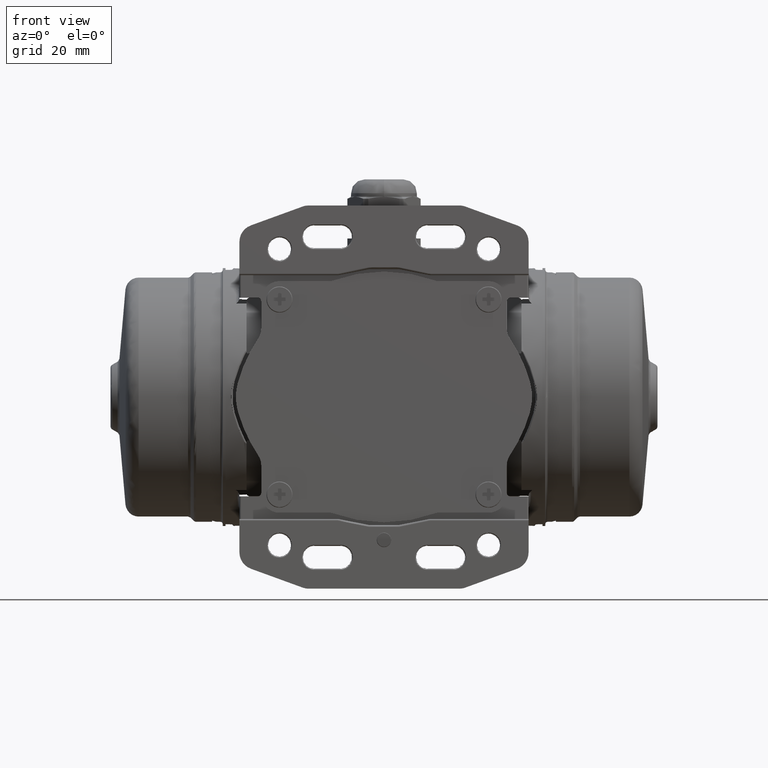
[diagram: clean part render]
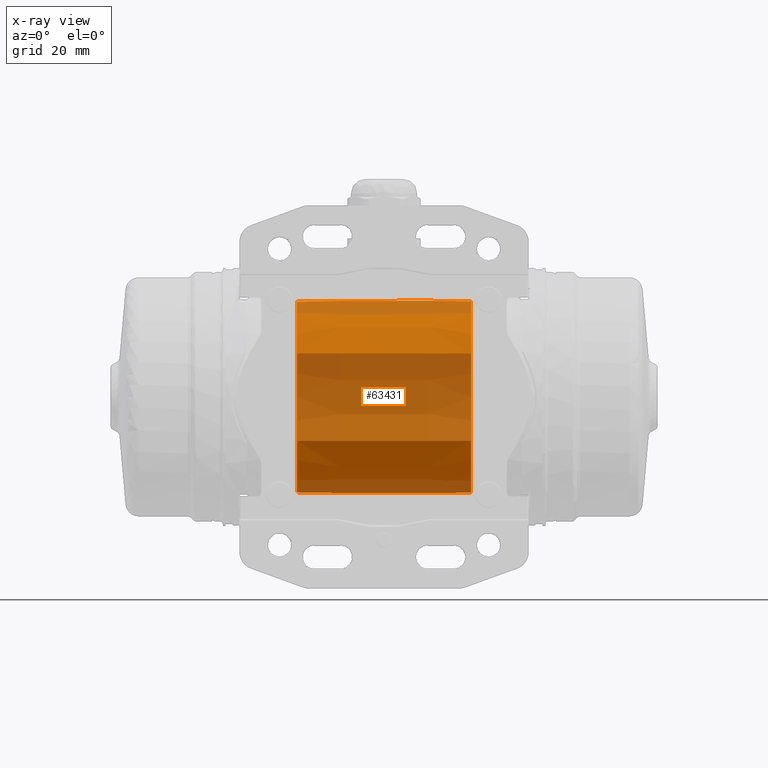
[diagram: x-ray — body ghosted, one internal face saturated and labeled with its STEP entity id]
A machine part, front view, then the same camera in x-ray: the body is ghosted and one INTERNAL B-rep face — a face not visible from any outside direction — is saturated and labeled: STEP entity #63431.
In plain terms, the highlighted conical surface has half-angle 0.115 deg.
Its self-contained STEP definition (entity closure, byte-faithful):
#6464 = EDGE_CURVE ( 'NONE', #64338, #18809, #100785, .T. ) ;
#8847 = DIRECTION ( 'NONE',  ( 1.631204715162934600E-015, -1.000000000000000000, 0.0000000000000000000 ) ) ;
#9929 = CARTESIAN_POINT ( 'NONE',  ( -24.99500802099994700, 0.3360905650000000100, -0.002992830000000000100 ) ) ;
#14260 = EDGE_LOOP ( 'NONE', ( #52036, #44484, #28456, #61707 ) ) ;
#16064 = CARTESIAN_POINT ( 'NONE',  ( 25.00489204300015100, -24.32709846705410000, 12.49699144262448100 ) ) ;
#17119 = CARTESIAN_POINT ( 'NONE',  ( 25.00489204300015100, -24.32709846705410000, 12.49699144262448100 ) ) ;
#18809 = VERTEX_POINT ( 'NONE', #38373 ) ;
#20600 = CARTESIAN_POINT ( 'NONE',  ( 8.338258738333333800, -24.28969966121086100, -12.50303369828957000 ) ) ;
#26850 = DIRECTION ( 'NONE',  ( 0.0000000000000000000, -1.000000000000000000, 0.0000000000000000000 ) ) ;
#28456 = ORIENTED_EDGE ( 'NONE', *, *, #6464, .F. ) ;
#29196 = VERTEX_POINT ( 'NONE', #123199 ) ;
#29879 = CARTESIAN_POINT ( 'NONE',  ( 25.00489204300015100, -24.32709845679900000, -12.50297712285848000 ) ) ;
#36982 = DIRECTION ( 'NONE',  ( 1.000000000000000000, 0.0000000000000000000, 0.0000000000000000000 ) ) ;
#38373 = CARTESIAN_POINT ( 'NONE',  ( 25.00489204300015100, -24.32709845679900000, -12.50297712285848000 ) ) ;
#39171 = CARTESIAN_POINT ( 'NONE',  ( -8.328374641333333300, -24.25230671375121400, -12.50304415539662800 ) ) ;
#43152 = AXIS2_PLACEMENT_3D ( 'NONE', #9929, #66584, #97037 ) ;
#43848 = EDGE_CURVE ( 'NONE', #114626, #29196, #90103, .T. ) ;
#44484 = ORIENTED_EDGE ( 'NONE', *, *, #76675, .F. ) ;
#45835 = CARTESIAN_POINT ( 'NONE',  ( 8.338258738333333800, -24.28969967563278900, 12.49704800990258700 ) ) ;
#47118 = CARTESIAN_POINT ( 'NONE',  ( -24.99500802100000000, 0.3360905650000005100, -0.002992830000000000100 ) ) ;
#52036 = ORIENTED_EDGE ( 'NONE', *, *, #43848, .F. ) ;
#55984 = CARTESIAN_POINT ( 'NONE',  ( -8.328374641333333300, -24.25230671983970900, 12.49705848344502500 ) ) ;
#57415 = EDGE_CURVE ( 'NONE', #29196, #64338, #121172, .T. ) ;
#61707 = ORIENTED_EDGE ( 'NONE', *, *, #57415, .F. ) ;
#63431 = ADVANCED_FACE ( 'NONE', ( #121836 ), #88542, .T. ) ;
#64338 = VERTEX_POINT ( 'NONE', #105415 ) ;
#66584 = DIRECTION ( 'NONE',  ( -1.000000000000000000, -0.0000000000000000000, -0.0000000000000000000 ) ) ;
#67600 = DIRECTION ( 'NONE',  ( 1.000000000000000000, 0.0000000000000000000, 0.0000000000000000000 ) ) ;
#72680 = AXIS2_PLACEMENT_3D ( 'NONE', #47118, #36982, #26850 ) ;
#76675 = EDGE_CURVE ( 'NONE', #18809, #114626, #91112, .T. ) ;
#78510 = CARTESIAN_POINT ( 'NONE',  ( -24.99500802100000000, -24.21492774127925100, -12.50299283498962000 ) ) ;
#86641 = CARTESIAN_POINT ( 'NONE',  ( 25.00489196800025100, 0.3360905650000000100, -0.002992830000000000100 ) ) ;
#88542 = CONICAL_SURFACE ( 'NONE', #72680, 27.55000000000000100, 0.002000001347771722400 ) ;
#90103 = B_SPLINE_CURVE_WITH_KNOTS ( 'NONE', 3,
 ( #17119, #45835, #55984, #102586 ),
 .UNSPECIFIED., .F., .F.,
 ( 4, 4 ),
 ( 0.0000000000000000000, 1.000000000000000000 ),
 .UNSPECIFIED. ) ;
#91112 = CIRCLE ( 'NONE', #102331, 27.65000000070000000 ) ;
#97037 = DIRECTION ( 'NONE',  ( -1.259327387278988800E-015, -1.000000000000000000, 0.0000000000000000000 ) ) ;
#100785 = B_SPLINE_CURVE_WITH_KNOTS ( 'NONE', 3,
 ( #78510, #39171, #20600, #29879 ),
 .UNSPECIFIED., .F., .F.,
 ( 4, 4 ),
 ( 0.0000000000000000000, 1.000000000000000000 ),
 .UNSPECIFIED. ) ;
#102331 = AXIS2_PLACEMENT_3D ( 'NONE', #86641, #67600, #8847 ) ;
#102586 = CARTESIAN_POINT ( 'NONE',  ( -24.99500802100000000, -24.21492773903444700, 12.49700717939864000 ) ) ;
#105415 = CARTESIAN_POINT ( 'NONE',  ( -24.99500802100000000, -24.21492774127925100, -12.50299283498962000 ) ) ;
#114626 = VERTEX_POINT ( 'NONE', #16064 ) ;
#121172 = CIRCLE ( 'NONE', #43152, 27.55000000000000100 ) ;
#121836 = FACE_OUTER_BOUND ( 'NONE', #14260, .T. ) ;
#123199 = CARTESIAN_POINT ( 'NONE',  ( -24.99500802100000000, -24.21492773903444700, 12.49700717939864000 ) ) ;